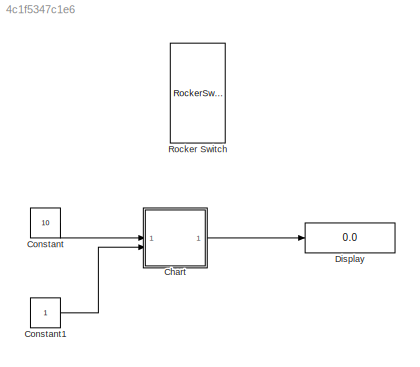
MODEL slx_4c1f5347c1e6
KIND model
CONFIG AbsTol = auto
CONFIG EnableMultiTasking = off
CONFIG FixedStep = auto
CONFIG MaxStep = auto
CONFIG MinStep = auto
CONFIG RelTol = 1e-3
CONFIG SampleTimeConstraint = Unconstrained
CONFIG SolverName = VariableStepAuto
CONFIG StartTime = 0.0
CONFIG StopTime = inf
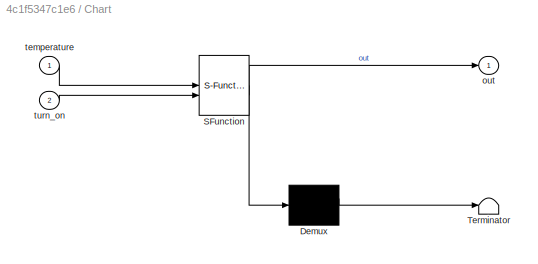
BLOCK [SubSystem] Chart
  ErrorFcn = Stateflow.Translate.translate
  PermitHierarchicalResolution = ExplicitOnly
  SFBlockType = Chart
  TreatAsAtomicUnit = on
BLOCK [Demux] Chart/ Demux 
  Outputs = 1
BLOCK [S-Function] Chart/ SFunction 
  EnableBusSupport = on
  FunctionName = sf_sfun
  PortCounts = [2 2]
  SFcnIsStateOwnerBlock = off
  SFunctionDeploymentMode = off
  Tag = Stateflow S-Function 3
BLOCK [Terminator] Chart/ Terminator 
BLOCK [Outport] Chart/out
BLOCK [Inport] Chart/temperature
BLOCK [Inport] Chart/turn_on
  Port = 2
BLOCK [Constant] Constant
  Value = 10
BLOCK [Constant] Constant1
BLOCK [Display] Display
  Decimation = 1
BLOCK [RockerSwitchBlock] Rocker Switch
LINE Chart:1 -> Display:1
LINE Constant1:1 -> Chart:2
LINE Constant:1 -> Chart:1
CHART Chart states=4 transitions=10
  STATE_LABEL 'on_off\nout=0'
  STATE_LABEL 'steady\n\nout=heat_temp'
  STATE_LABEL 'heat_on\n\nheat_temp=heat_temp+1\nout=heat_temp\n'
  STATE_LABEL 'cooler_on\n\nheat_temp=heat_temp-1\nout=heat_temp\n'
CHART  states=0 transitions=0
